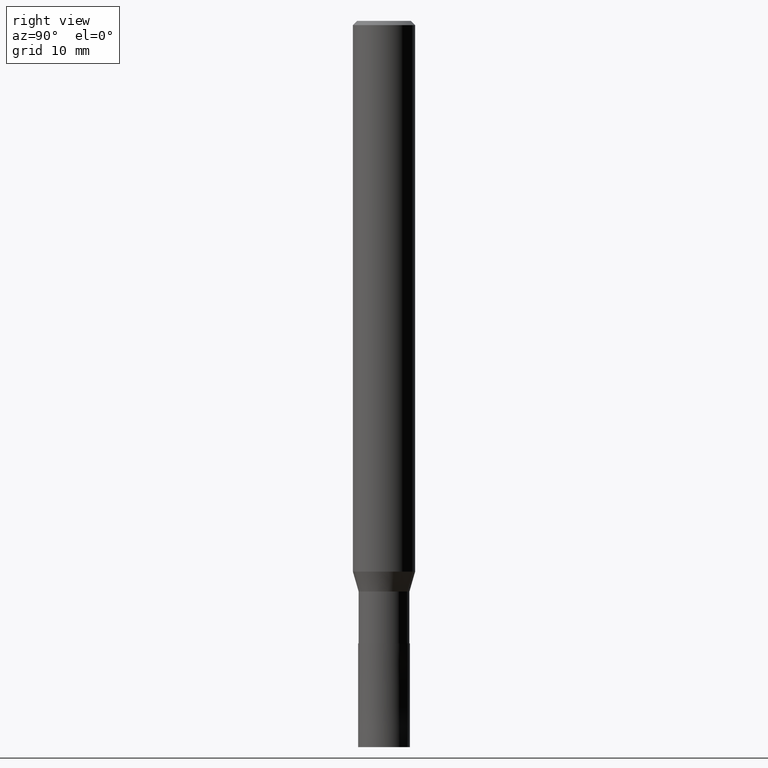
[diagram: clean part render]
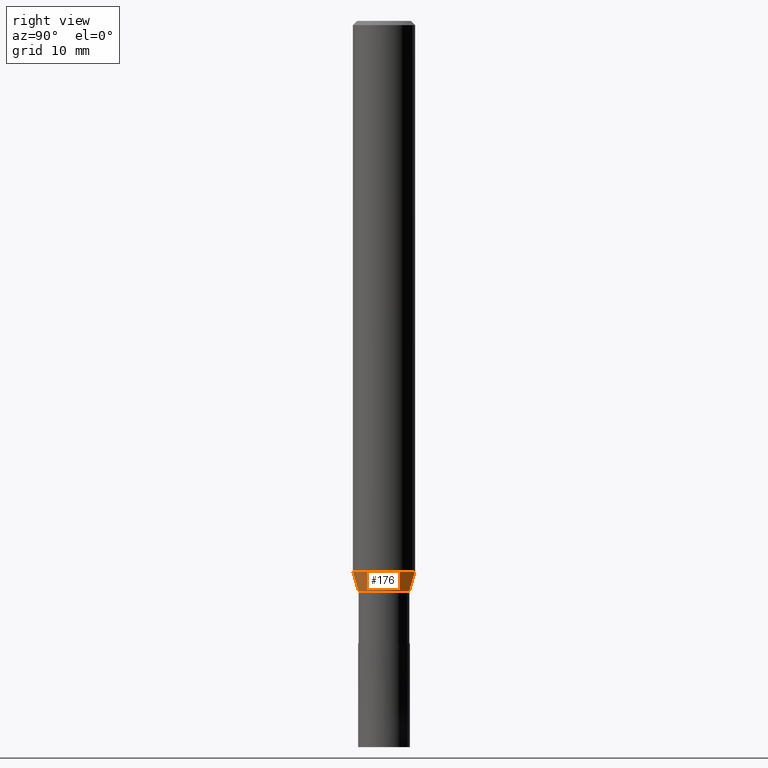
[diagram: same view with one face highlighted and labeled with its STEP entity id]
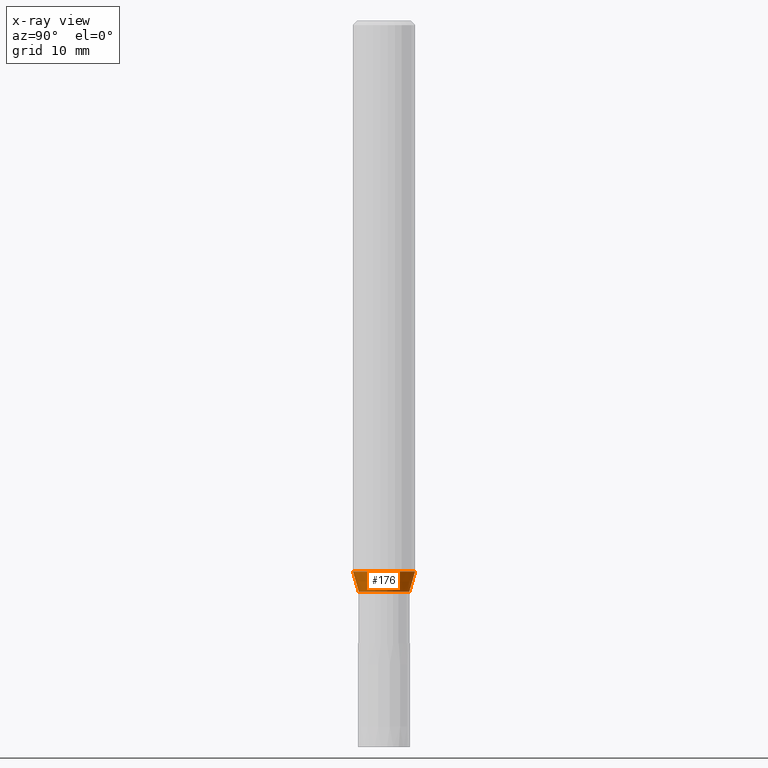
[diagram: x-ray of the same camera — body ghosted, the highlighted face saturated]
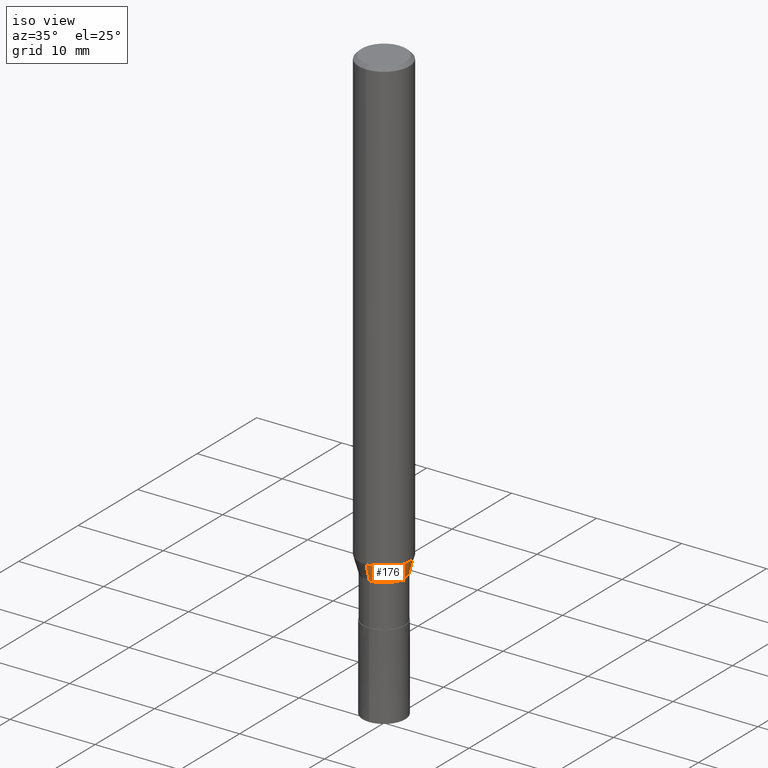
[diagram: same view with one face highlighted and labeled with its STEP entity id]
A machine part, right view. The second image highlights one B-rep face of the part: STEP entity #176.
The next image is the same camera in x-ray: the body ghosted, the highlighted face saturated — about 0% of this face is hidden behind the body in this view.
A second angle (iso view) of the same face is appended — the face is thin or edge-on in the first view.
In plain terms, the highlighted conical surface has half-angle 16.001 deg.
Its self-contained STEP definition (entity closure, byte-faithful):
#98=VERTEX_POINT('',#235);
#104=VERTEX_POINT('',#241);
#120=VERTEX_POINT('',#261);
#156=EDGE_CURVE('',#162,#98,#301,.T.);
#162=VERTEX_POINT('',#309);
#164=EDGE_CURVE('',#104,#162,#311,.T.);
#176=ADVANCED_FACE('',(#324),#325,.T.);
#194=EDGE_CURVE('',#98,#120,#345,.T.);
#204=EDGE_CURVE('',#104,#120,#356,.T.);
#235=CARTESIAN_POINT('',(3.00022433654713E-016,-2.44995,-55.0));
#241=CARTESIAN_POINT('',(0.0,2.99995,-53.082));
#261=CARTESIAN_POINT('',(3.67375783114944E-016,-2.99995,-53.082));
#301=CIRCLE('',#464,2.44995);
#309=CARTESIAN_POINT('',(0.0,2.44995,-55.0));
#311=LINE('',#476,#477);
#324=FACE_OUTER_BOUND('',#492,.T.);
#325=CONICAL_SURFACE('',#493,2.72495,0.279263447774572);
#345=LINE('',#518,#519);
#356=CIRCLE('',#536,2.99995);
#464=AXIS2_PLACEMENT_3D('',#629,#630,#631);
#476=CARTESIAN_POINT('',(-3.33699108384829E-016,2.72495,-54.041));
#477=VECTOR('',#643,1.0);
#492=EDGE_LOOP('',(#657,#658,#659,#660));
#493=AXIS2_PLACEMENT_3D('',#661,#662,#663);
#518=CARTESIAN_POINT('',(3.33699108384829E-016,-2.72495,-54.041));
#519=VECTOR('',#690,1.0);
#536=AXIS2_PLACEMENT_3D('',#702,#703,#704);
#629=CARTESIAN_POINT('',(0.0,0.0,-55.0));
#630=DIRECTION('',(0.0,0.0,-1.0));
#631=DIRECTION('',(0.0,1.0,0.0));
#643=DIRECTION('',(3.37559932359937E-017,-0.275647706143536,-0.961258727969638));
#657=ORIENTED_EDGE('',*,*,#164,.F.);
#658=ORIENTED_EDGE('',*,*,#204,.T.);
#659=ORIENTED_EDGE('',*,*,#194,.F.);
#660=ORIENTED_EDGE('',*,*,#156,.F.);
#661=CARTESIAN_POINT('',(0.0,0.0,-54.041));
#662=DIRECTION('',(-0.0,-0.0,1.0));
#663=DIRECTION('',(0.0,1.0,0.0));
#690=DIRECTION('',(3.37559932359937E-017,-0.275647706143536,0.961258727969638));
#702=CARTESIAN_POINT('',(0.0,0.0,-53.082));
#703=DIRECTION('',(0.0,0.0,-1.0));
#704=DIRECTION('',(0.0,1.0,0.0));